MODEL PV_MPPT
KIND model
BLOCK [Reference] C  REF=powerlib/Elements/Series RLC Branch
  BranchType = C
  Capacitance = 2e-3
  Inductance = 1.0
  InitialCurrent = 0
  InitialVoltage = 200
  LConnTagsString = __new0
  LeftPortType = p1
  Measurements = None
  PhysicalDomain = powersysdomain
  Ports = [0, 0, 0, 0, 0, 1, 1]
  RConnTagsString = __new0
  Resistance = 0.01
  RightPortType = p1
  SID = 1
  SetiL0 = off
  Setx0 = off
  SourceBlock = powerlib/Elements/Series RLC Branch
  SourceProductBaseCode = PS
  SourceProductName = Simscape Electrical
  SourceType = Series RLC Branch
  SubClassName = unknown
BLOCK [Reference] C1  REF=powerlib/Elements/Series RLC Branch
  BranchType = C
  Capacitance = 2e-3
  Inductance = 1.0
  InitialCurrent = 0
  InitialVoltage = 0
  LConnTagsString = __new0
  LeftPortType = p1
  Measurements = None
  PhysicalDomain = powersysdomain
  Ports = [0, 0, 0, 0, 0, 1, 1]
  RConnTagsString = __new0
  Resistance = 0.01
  RightPortType = p1
  SID = 2
  SetiL0 = off
  Setx0 = off
  SourceBlock = powerlib/Elements/Series RLC Branch
  SourceProductBaseCode = PS
  SourceProductName = Simscape Electrical
  SourceType = Series RLC Branch
  SubClassName = unknown
BLOCK [Reference] CM3  REF=powerlib/Measurements/Current Measurement
  AttributesFormatString = \\n
  FunctionWithSeparateData = off
  OutputType = Magnitude
  PSBequivalent = 0
  PhasorSimulation = off
  Ports = [0, 1, 0, 0, 0, 1, 1]
  RTWMemSecDataConstants = Inherit from model
  RTWMemSecDataInternal = Inherit from model
  RTWMemSecDataParameters = Inherit from model
  RTWMemSecFuncExecute = Inherit from model
  RTWMemSecFuncInitTerm = Inherit from model
  SID = 3
  ShowPortLabels = FromPortIcon
  SourceBlock = powerlib/Measurements/Current Measurement
  SourceProductBaseCode = PS
  SourceProductName = Simscape Electrical
  SourceType = Current Measurement
  SystemSampleTime = -1
  Tag = PoWeRsYsTeMmEaSuReMeNt
BLOCK [Constant] Constant
  SID = 4
  Value = 25
BLOCK [Constant] Constant1
  SID = 5
  Value = 400
BLOCK [Reference] Controlled Current Source  REF=powerlib/Electrical\nSources/Controlled Current Source
  Amplitude = 0
  Frequency = 0
  FunctionWithSeparateData = off
  Initialize = on
  Measurements = None
  Phase = 0
  Ports = [1, 0, 0, 0, 0, 1, 1]
  RTWMemSecDataConstants = Inherit from model
  RTWMemSecDataInternal = Inherit from model
  RTWMemSecDataParameters = Inherit from model
  RTWMemSecFuncExecute = Inherit from model
  RTWMemSecFuncInitTerm = Inherit from model
  SID = 6
  ShowPortLabels = FromPortIcon
  SourceBlock = powerlib/Electrical\nSources/Controlled Current Source
  SourceProductBaseCode = PS
  SourceProductName = Simscape Electrical
  SourceType = Controlled Current Source
  Source_Type = AC
  SystemSampleTime = -1
BLOCK [Reference] Diode  REF=powerlib/Power\nElectronics/Diode
  AttributesFormatString = \\n
  Cs = 250e-9
  FunctionWithSeparateData = off
  IC = 0
  Lon = 0
  Measurements = off
  Ports = [0, 0, 0, 0, 0, 1, 1]
  RTWMemSecDataConstants = Inherit from model
  RTWMemSecDataInternal = Inherit from model
  RTWMemSecDataParameters = Inherit from model
  RTWMemSecFuncExecute = Inherit from model
  RTWMemSecFuncInitTerm = Inherit from model
  Ron = 0.001
  Rs = 500
  SID = 7
  ShowPortLabels = FromPortIcon
  SourceBlock = powerlib/Power\nElectronics/Diode
  SourceProductBaseCode = PS
  SourceProductName = Simscape Electrical
  SourceType = Diode
  SystemSampleTime = -1
  UseSnubber = off
  Vf = 0.8
BLOCK [Reference] IGBT  REF=powerlib/Power\nElectronics/IGBT
  Cs = inf
  FunctionWithSeparateData = off
  IC = 0
  Lon = 0
  Measurements = off
  Ports = [1, 0, 0, 0, 0, 1, 1]
  RTWMemSecDataConstants = Inherit from model
  RTWMemSecDataInternal = Inherit from model
  RTWMemSecDataParameters = Inherit from model
  RTWMemSecFuncExecute = Inherit from model
  RTWMemSecFuncInitTerm = Inherit from model
  Ron = 0.001
  Rs = 1e5
  SID = 8
  ShowPortLabels = FromPortIcon
  SourceBlock = powerlib/Power\nElectronics/IGBT
  SourceProductBaseCode = PS
  SourceProductName = Simscape Electrical
  SourceType = IGBT
  SystemSampleTime = -1
  Tf = 1e-6
  Tt = 2e-6
  Vf = 1
BLOCK [Reference] L  REF=powerlib/Elements/Series RLC Branch
  BranchType = L
  Capacitance = 1.0
  Inductance = 0.01
  InitialCurrent = 0
  InitialVoltage = 0
  LConnTagsString = __new0
  LeftPortType = p1
  Measurements = None
  PhysicalDomain = powersysdomain
  Ports = [0, 0, 0, 0, 0, 1, 1]
  RConnTagsString = __new0
  Resistance = 1.0
  RightPortType = p1
  SID = 9
  SetiL0 = off
  Setx0 = off
  SourceBlock = powerlib/Elements/Series RLC Branch
  SourceProductBaseCode = PS
  SourceProductName = Simscape Electrical
  SourceType = Series RLC Branch
  SubClassName = unknown
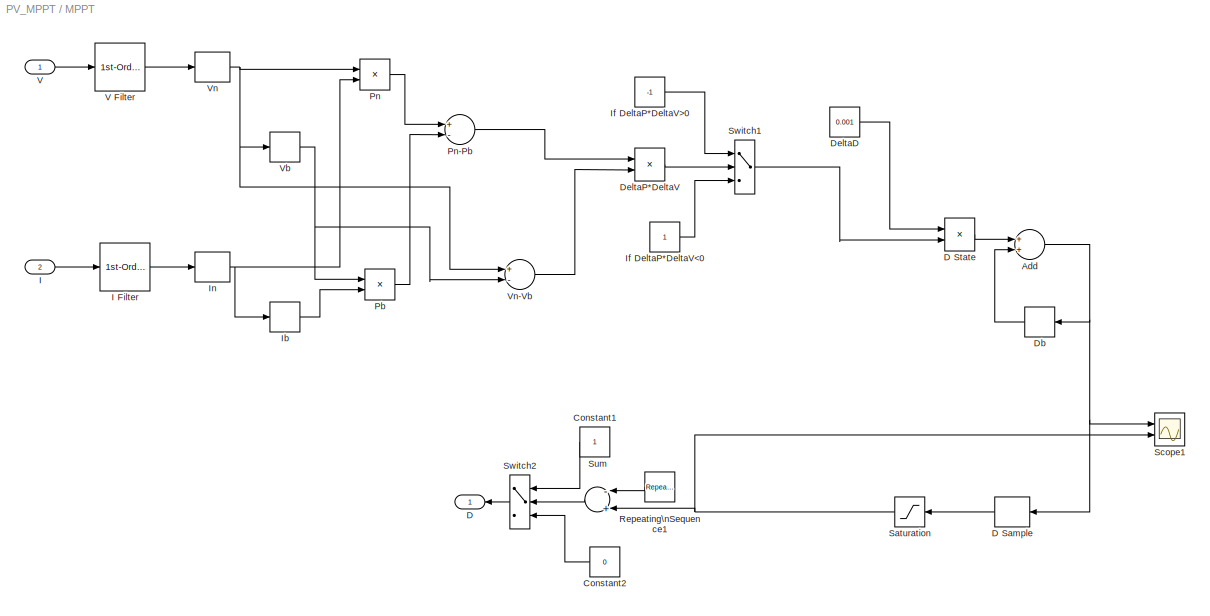
BLOCK [SubSystem] MPPT
  Ports = [2, 1]
  RequestExecContextInheritance = off
  SID = 10
BLOCK [Sum] MPPT/Add
  InputSameDT = off
  OutDataTypeStr = Inherit: Inherit via internal rule
  Ports = [2, 1]
  SID = 13
  SaturateOnIntegerOverflow = off
BLOCK [Constant] MPPT/Constant1
  SID = 14
  SampleTime = -1
BLOCK [Constant] MPPT/Constant2
  SID = 15
  SampleTime = -1
  Value = 0
BLOCK [Outport] MPPT/D
  IconDisplay = Port number
  SID = 39
BLOCK [ZeroOrderHold] MPPT/D Sample
  SID = 16
  SampleTime = 1e-4
BLOCK [Product] MPPT/D State
  InputSameDT = off
  OutDataTypeStr = Inherit: Inherit via internal rule
  Ports = [2, 1]
  SID = 17
  SaturateOnIntegerOverflow = off
BLOCK [Memory] MPPT/Db
  InheritSampleTime = on
  LinearizeAsDelay = on
  SID = 18
BLOCK [Constant] MPPT/DeltaD
  SID = 19
  Value = 0.001
BLOCK [Product] MPPT/DeltaP*DeltaV
  InputSameDT = off
  OutDataTypeStr = Inherit: Inherit via internal rule
  Ports = [2, 1]
  SID = 20
  SaturateOnIntegerOverflow = off
BLOCK [Inport] MPPT/I
  IconDisplay = Port number
  Port = 2
  SID = 12
BLOCK [Reference] MPPT/I Filter  REF=powerlib_extras/Control \nBlocks/1st-Order \nFilter
  FilterType = Lowpass
  FunctionWithSeparateData = off
  Initialize = off
  PlotResponse = off
  Ports = [1, 1]
  RTWMemSecDataConstants = Inherit from model
  RTWMemSecDataInternal = Inherit from model
  RTWMemSecDataParameters = Inherit from model
  RTWMemSecFuncExecute = Inherit from model
  RTWMemSecFuncInitTerm = Inherit from model
  SID = 21
  ShowPortLabels = FromPortIcon
  SourceBlock = powerlib_extras/Control \nBlocks/1st-Order \nFilter
  SourceProductBaseCode = PS
  SourceProductName = Simscape Electrical
  SourceType = First-Order Filter
  SystemSampleTime = -1
  Tc = 1e-3
  Vac_Init = [0.8 -25 60]
  Vdc_Init = -0.4
  param1 = [1 500 1]
BLOCK [Memory] MPPT/Ib
  InheritSampleTime = on
  LinearizeAsDelay = on
  SID = 22
BLOCK [Constant] MPPT/If DeltaP*DeltaV<0
  SID = 23
BLOCK [Constant] MPPT/If DeltaP*DeltaV>0
  SID = 24
  Value = -1
BLOCK [ZeroOrderHold] MPPT/In
  SID = 25
  SampleTime = 1e-4
BLOCK [Product] MPPT/Pb
  InputSameDT = off
  OutDataTypeStr = Inherit: Inherit via internal rule
  Ports = [2, 1]
  SID = 26
  SaturateOnIntegerOverflow = off
BLOCK [Product] MPPT/Pn
  InputSameDT = off
  OutDataTypeStr = Inherit: Inherit via internal rule
  Ports = [2, 1]
  SID = 27
  SaturateOnIntegerOverflow = off
BLOCK [Sum] MPPT/Pn-Pb
  InputSameDT = off
  Inputs = +-
  OutDataTypeStr = Inherit: Inherit via internal rule
  Ports = [2, 1]
  SID = 28
  SaturateOnIntegerOverflow = off
BLOCK [Reference] MPPT/Repeating\nSequence1  REF=simulink/Sources/Repeating\nSequence
  FunctionWithSeparateData = off
  Ports = [0, 1]
  RTWMemSecDataConstants = Inherit from model
  RTWMemSecDataInternal = Inherit from model
  RTWMemSecDataParameters = Inherit from model
  RTWMemSecFuncExecute = Inherit from model
  RTWMemSecFuncInitTerm = Inherit from model
  SID = 29
  ShowPortLabels = FromPortIcon
  SourceBlock = simulink/Sources/Repeating\nSequence
  SourceProductBaseCode = SL
  SourceProductName = Simulink
  SourceType = Repeating table
  SystemSampleTime = -1
  rep_seq_t = [0 4e-3 4e-3]
  rep_seq_y = [0 1 0]
BLOCK [Saturate] MPPT/Saturation
  InputPortMap = u0
  LowerLimit = 0
  Ports = [1, 1]
  SID = 30
  UpperLimit = 0.8
BLOCK [Scope] MPPT/Scope1
  Floating = off
  NumInputPorts = 2
  Ports = [2]
  SID = 31
  ScopeSpecificationString = C++SS(StrPVP('Location','[5, 52, 1285, 993]'),StrPVP('Open','off'),StrPVP('ZoomMode','xonly'),MxPVP('AxesTitles',54,'struct(''axes1'',''%<SignalLabel>'',''axes2'',''%<SignalLabel>'')'),StrPVP('TimeRange','3'),StrPVP('YMin','0.42~-5'),StrPVP('YMax','0.59~5'),StrPVP('SaveName','ScopeData3'),StrPVP('DataFormat','StructureWithTime'),StrPVP('LimitDataPoints','off'),StrPVP('BlockParamSampleInput','on'),...<+25ch>
BLOCK [Sum] MPPT/Sum
  InputSameDT = off
  Inputs = -+
  OutDataTypeStr = Inherit: Inherit via internal rule
  Ports = [2, 1]
  SID = 32
BLOCK [Switch] MPPT/Switch1
  InputSameDT = off
  SID = 33
  SaturateOnIntegerOverflow = off
BLOCK [Switch] MPPT/Switch2
  InputSameDT = off
  SID = 34
  SaturateOnIntegerOverflow = off
BLOCK [Inport] MPPT/V
  IconDisplay = Port number
  SID = 11
BLOCK [Reference] MPPT/V Filter  REF=powerlib_extras/Control \nBlocks/1st-Order \nFilter
  FilterType = Lowpass
  FunctionWithSeparateData = off
  Initialize = off
  PlotResponse = off
  Ports = [1, 1]
  RTWMemSecDataConstants = Inherit from model
  RTWMemSecDataInternal = Inherit from model
  RTWMemSecDataParameters = Inherit from model
  RTWMemSecFuncExecute = Inherit from model
  RTWMemSecFuncInitTerm = Inherit from model
  SID = 35
  ShowPortLabels = FromPortIcon
  SourceBlock = powerlib_extras/Control \nBlocks/1st-Order \nFilter
  SourceProductBaseCode = PS
  SourceProductName = Simscape Electrical
  SourceType = First-Order Filter
  SystemSampleTime = -1
  Tc = 1e-3
  Vac_Init = [0.8 -25 60]
  Vdc_Init = -0.4
  param1 = [1 500 1]
BLOCK [Memory] MPPT/Vb
  InheritSampleTime = on
  LinearizeAsDelay = on
  SID = 36
BLOCK [ZeroOrderHold] MPPT/Vn
  SID = 37
  SampleTime = 1e-4
BLOCK [Sum] MPPT/Vn-Vb
  InputSameDT = off
  Inputs = +-
  OutDataTypeStr = Inherit: Inherit via internal rule
  Ports = [2, 1]
  SID = 38
  SaturateOnIntegerOverflow = off
BLOCK [Product] Product
  InputSameDT = off
  OutDataTypeStr = Inherit: Inherit via internal rule
  Ports = [2, 1]
  SID = 41
  SaturateOnIntegerOverflow = off
BLOCK [Product] Product1
  InputSameDT = off
  OutDataTypeStr = Inherit: Inherit via internal rule
  Ports = [2, 1]
  SID = 42
  SaturateOnIntegerOverflow = off
BLOCK [Reference] R  REF=powerlib/Elements/Series RLC Branch
  BranchType = R
  Capacitance = 1.0
  Inductance = 1.0
  InitialCurrent = 0
  InitialVoltage = 0
  LConnTagsString = __new0
  LeftPortType = p1
  Measurements = None
  PhysicalDomain = powersysdomain
  Ports = [0, 0, 0, 0, 0, 1, 1]
  RConnTagsString = __new0
  Resistance = 500
  RightPortType = p1
  SID = 43
  SetiL0 = off
  Setx0 = off
  SourceBlock = powerlib/Elements/Series RLC Branch
  SourceProductBaseCode = PS
  SourceProductName = Simscape Electrical
  SourceType = Series RLC Branch
  SubClassName = unknown
BLOCK [Reference] R1  REF=powerlib/Elements/Series RLC Branch
  BranchType = R
  Capacitance = 1.0
  Inductance = 1.0
  InitialCurrent = 0
  InitialVoltage = 0
  LConnTagsString = __new0
  LeftPortType = p1
  Measurements = None
  PhysicalDomain = powersysdomain
  Ports = [0, 0, 0, 0, 0, 1, 1]
  RConnTagsString = __new0
  Resistance = 1
  RightPortType = p1
  SID = 44
  SetiL0 = off
  Setx0 = off
  SourceBlock = powerlib/Elements/Series RLC Branch
  SourceProductBaseCode = PS
  SourceProductName = Simscape Electrical
  SourceType = Series RLC Branch
  SubClassName = unknown
BLOCK [Scope] Scope1
  Floating = off
  NumInputPorts = 1
  Ports = [1]
  SID = 45
  ScopeSpecificationString = C++SS(StrPVP('Location','[162, 39, 1186, 714]'),StrPVP('Open','off'),StrPVP('ZoomMode','xonly'),MxPVP('AxesTitles',54,'struct(''axes1'',''%<SignalLabel>'')'),StrPVP('TimeRange','3'),StrPVP('YMin','-50'),StrPVP('YMax','600'),StrPVP('DataFormat','StructureWithTime'),StrPVP('LimitDataPoints','off'),StrPVP('BlockParamSampleInput','on'),StrPVP('Decimation','1'))
BLOCK [Scope] Scope2
  Floating = off
  NumInputPorts = 1
  Ports = [1]
  SID = 46
  ScopeSpecificationString = C++SS(StrPVP('Location','[485, 357, 1513, 775]'),StrPVP('Open','off'),StrPVP('ZoomMode','yonly'),MxPVP('AxesTitles',54,'struct(''axes1'',''%<SignalLabel>'')'),StrPVP('TimeRange','3'),StrPVP('YMin','0'),StrPVP('YMax','10'),StrPVP('SaveName','ScopeData1'),StrPVP('DataFormat','StructureWithTime'),StrPVP('LimitDataPoints','off'),StrPVP('Decimation','1'),StrPVP('BlockParamSampleInput','off'))
BLOCK [Scope] Scope3
  Floating = off
  NumInputPorts = 2
  Ports = [2]
  SID = 47
  ScopeSpecificationString = C++SS(StrPVP('Location','[5, 285, 1285, 714]'),StrPVP('Open','off'),StrPVP('ZoomMode','xonly'),MxPVP('AxesTitles',54,'struct(''axes1'',''%<SignalLabel>'',''axes2'',''%<SignalLabel>'')'),StrPVP('TimeRange','3'),StrPVP('YMin','0~718'),StrPVP('YMax','1~728'),StrPVP('SaveName','ScopeData2'),StrPVP('DataFormat','StructureWithTime'),StrPVP('LimitDataPoints','off'),StrPVP('Decimation','1'),StrPVP('BlockP...<+24ch>
BLOCK [Scope] Scope5
  Floating = off
  NumInputPorts = 2
  Ports = [2]
  SID = 48
  ScopeSpecificationString = C++SS(StrPVP('Location','[5, 285, 1285, 714]'),StrPVP('Open','off'),StrPVP('ZoomMode','xonly'),MxPVP('AxesTitles',54,'struct(''axes1'',''%<SignalLabel>'',''axes2'',''%<SignalLabel>'')'),StrPVP('TimeRange','3'),StrPVP('YMin','75~660'),StrPVP('YMax','325~730'),StrPVP('SaveName','ScopeData5'),StrPVP('DataFormat','StructureWithTime'),StrPVP('LimitDataPoints','off'),StrPVP('Decimation','1'),StrPVP('Blo...<+27ch>
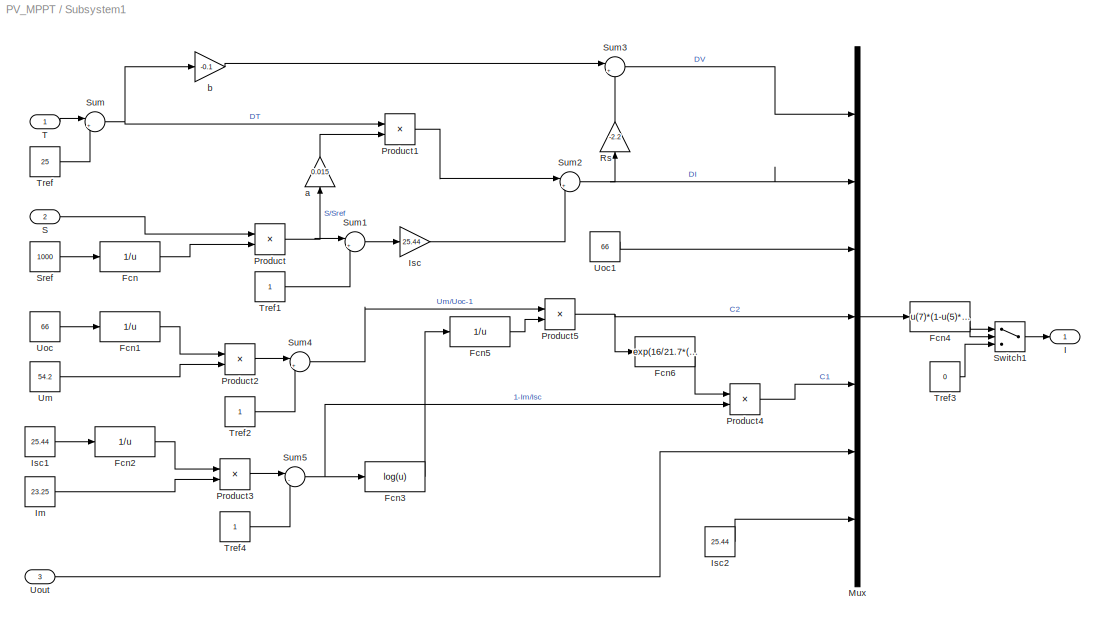
BLOCK [SubSystem] Subsystem1
  Ports = [3, 1]
  RequestExecContextInheritance = off
  SID = 49
BLOCK [Fcn] Subsystem1/Fcn
  Expr = 1/u
  SID = 53
BLOCK [Fcn] Subsystem1/Fcn1
  Expr = 1/u
  SID = 54
BLOCK [Fcn] Subsystem1/Fcn2
  Expr = 1/u
  SID = 55
BLOCK [Fcn] Subsystem1/Fcn3
  Expr = log(u)
  SID = 56
BLOCK [Fcn] Subsystem1/Fcn4
  Expr = u(7)*(1-u(5)*(exp((u(6)-u(1))/(u(4)*u(3)))-1))+u(2)
  SID = 57
BLOCK [Fcn] Subsystem1/Fcn5
  Expr = 1/u
  SID = 58
BLOCK [Fcn] Subsystem1/Fcn6
  Expr = exp(16/21.7*(-1)/u)
  SID = 59
BLOCK [Outport] Subsystem1/I
  IconDisplay = Port number
  SID = 90
BLOCK [Constant] Subsystem1/Im
  SID = 60
  Value = 23.25
BLOCK [Gain] Subsystem1/Isc
  Gain = 25.44
  OutDataTypeStr = Inherit: Inherit via internal rule
  ParamDataTypeStr = Inherit: Inherit via internal rule
  SID = 61
  SaturateOnIntegerOverflow = off
BLOCK [Constant] Subsystem1/Isc1
  SID = 62
  Value = 25.44
BLOCK [Constant] Subsystem1/Isc2
  SID = 63
  Value = 25.44
BLOCK [Mux] Subsystem1/Mux
  DisplayOption = bar
  Inputs = 7
  Ports = [7, 1]
  SID = 64
BLOCK [Product] Subsystem1/Product
  InputSameDT = off
  OutDataTypeStr = Inherit: Inherit via internal rule
  Ports = [2, 1]
  SID = 65
  SaturateOnIntegerOverflow = off
BLOCK [Product] Subsystem1/Product1
  InputSameDT = off
  OutDataTypeStr = Inherit: Inherit via internal rule
  Ports = [2, 1]
  SID = 66
  SaturateOnIntegerOverflow = off
BLOCK [Product] Subsystem1/Product2
  InputSameDT = off
  OutDataTypeStr = Inherit: Inherit via internal rule
  Ports = [2, 1]
  SID = 67
  SaturateOnIntegerOverflow = off
BLOCK [Product] Subsystem1/Product3
  InputSameDT = off
  OutDataTypeStr = Inherit: Inherit via internal rule
  Ports = [2, 1]
  SID = 68
  SaturateOnIntegerOverflow = off
BLOCK [Product] Subsystem1/Product4
  InputSameDT = off
  OutDataTypeStr = Inherit: Inherit via internal rule
  Ports = [2, 1]
  SID = 69
  SaturateOnIntegerOverflow = off
BLOCK [Product] Subsystem1/Product5
  InputSameDT = off
  OutDataTypeStr = Inherit: Inherit via internal rule
  Ports = [2, 1]
  SID = 70
  SaturateOnIntegerOverflow = off
BLOCK [Gain] Subsystem1/Rs
  Gain = -2.2
  OutDataTypeStr = Inherit: Inherit via internal rule
  ParamDataTypeStr = Inherit: Inherit via internal rule
  SID = 71
  SaturateOnIntegerOverflow = off
BLOCK [Inport] Subsystem1/S
  IconDisplay = Port number
  Port = 2
  SID = 51
BLOCK [Constant] Subsystem1/Sref
  SID = 72
  Value = 1000
BLOCK [Sum] Subsystem1/Sum
  IconShape = round
  InputSameDT = off
  Inputs = |+-
  OutDataTypeStr = Inherit: Inherit via internal rule
  Ports = [2, 1]
  SID = 73
  SaturateOnIntegerOverflow = off
BLOCK [Sum] Subsystem1/Sum1
  IconShape = round
  InputSameDT = off
  Inputs = |+-
  OutDataTypeStr = Inherit: Inherit via internal rule
  Ports = [2, 1]
  SID = 74
  SaturateOnIntegerOverflow = off
BLOCK [Sum] Subsystem1/Sum2
  IconShape = round
  InputSameDT = off
  Inputs = |++
  OutDataTypeStr = Inherit: Inherit via internal rule
  Ports = [2, 1]
  SID = 75
  SaturateOnIntegerOverflow = off
BLOCK [Sum] Subsystem1/Sum3
  IconShape = round
  InputSameDT = off
  Inputs = |++
  OutDataTypeStr = Inherit: Inherit via internal rule
  Ports = [2, 1]
  SID = 76
  SaturateOnIntegerOverflow = off
BLOCK [Sum] Subsystem1/Sum4
  IconShape = round
  InputSameDT = off
  Inputs = |+-
  OutDataTypeStr = Inherit: Inherit via internal rule
  Ports = [2, 1]
  SID = 77
  SaturateOnIntegerOverflow = off
BLOCK [Sum] Subsystem1/Sum5
  IconShape = round
  InputSameDT = off
  Inputs = |-+
  OutDataTypeStr = Inherit: Inherit via internal rule
  Ports = [2, 1]
  SID = 78
  SaturateOnIntegerOverflow = off
BLOCK [Switch] Subsystem1/Switch1
  InputSameDT = off
  SID = 79
  SaturateOnIntegerOverflow = off
BLOCK [Inport] Subsystem1/T
  IconDisplay = Port number
  SID = 50
BLOCK [Constant] Subsystem1/Tref
  SID = 80
  Value = 25
BLOCK [Constant] Subsystem1/Tref1
  SID = 81
BLOCK [Constant] Subsystem1/Tref2
  SID = 82
BLOCK [Constant] Subsystem1/Tref3
  SID = 83
  Value = 0
BLOCK [Constant] Subsystem1/Tref4
  SID = 84
BLOCK [Constant] Subsystem1/Um
  SID = 85
  Value = 54.2
BLOCK [Constant] Subsystem1/Uoc
  SID = 86
  Value = 66
BLOCK [Constant] Subsystem1/Uoc1
  SID = 87
  Value = 66
BLOCK [Inport] Subsystem1/Uout
  IconDisplay = Port number
  Port = 3
  SID = 52
BLOCK [Gain] Subsystem1/a
  Gain = 0.015
  OutDataTypeStr = Inherit: Inherit via internal rule
  ParamDataTypeStr = Inherit: Inherit via internal rule
  SID = 88
  SaturateOnIntegerOverflow = off
BLOCK [Gain] Subsystem1/b
  Gain = -0.1
  OutDataTypeStr = Inherit: Inherit via internal rule
  ParamDataTypeStr = Inherit: Inherit via internal rule
  SID = 89
  SaturateOnIntegerOverflow = off
BLOCK [Reference] VM1  REF=powerlib/Measurements/Voltage Measurement
  AttributesFormatString = \\n
  FunctionWithSeparateData = off
  OutputType = Magnitude
  PSBequivalent = 0
  PhasorSimulation = off
  Ports = [0, 1, 0, 0, 0, 2]
  RTWMemSecDataConstants = Inherit from model
  RTWMemSecDataInternal = Inherit from model
  RTWMemSecDataParameters = Inherit from model
  RTWMemSecFuncExecute = Inherit from model
  RTWMemSecFuncInitTerm = Inherit from model
  SID = 91
  ShowPortLabels = FromPortIcon
  SourceBlock = powerlib/Measurements/Voltage Measurement
  SourceProductBaseCode = PS
  SourceProductName = Simscape Electrical
  SourceType = Voltage Measurement
  SystemSampleTime = -1
  Tag = PoWeRsYsTeMmEaSuReMeNt
BLOCK [Reference] VM2  REF=powerlib/Measurements/Voltage Measurement
  AttributesFormatString = \\n
  FunctionWithSeparateData = off
  OutputType = Magnitude
  PSBequivalent = 0
  PhasorSimulation = off
  Ports = [0, 1, 0, 0, 0, 2]
  RTWMemSecDataConstants = Inherit from model
  RTWMemSecDataInternal = Inherit from model
  RTWMemSecDataParameters = Inherit from model
  RTWMemSecFuncExecute = Inherit from model
  RTWMemSecFuncInitTerm = Inherit from model
  SID = 92
  ShowPortLabels = FromPortIcon
  SourceBlock = powerlib/Measurements/Voltage Measurement
  SourceProductBaseCode = PS
  SourceProductName = Simscape Electrical
  SourceType = Voltage Measurement
  SystemSampleTime = -1
  Tag = PoWeRsYsTeMmEaSuReMeNt
BLOCK [Reference] powergui  REF=powerlib/powergui
  DisplayStyle = 1
  EnableUseOfTLC = off
  Frange = [0:2:500]
  FreqAxis = off
  FunctionMessages = off
  FunctionWithSeparateData = off
  HookPort = off
  Interpol = off
  MaxFrequency = 1000
  Ports = []
  RTWMemSecDataConstants = Inherit from model
  RTWMemSecDataInternal = Inherit from model
  RTWMemSecDataParameters = Inherit from model
  RTWMemSecFuncExecute = Inherit from model
  RTWMemSecFuncInitTerm = Inherit from model
  RestoreLinks = warning
  RmsSteady = 1
  SID = 93
  SPID = off
  SampleTime = 50e-6
  ShowGrid = off
  ShowPortLabels = FromPortIcon
  SourceBlock = powerlib/powergui
  SourceProductBaseCode = PS
  SourceProductName = Simscape Electrical
  SourceType = PSB option menu block
  StartTime = 0.0
  SwTol = 0
  SystemSampleTime = -1
  Ts = 0
  UserDataPersistent = on
  Xlog = on
  Ylog = off
  ZoomFFT = on
  cycles = 1
  display = off
  echomessages = off
  frequency = 60
  frequencyindice = 0
  frequencyindicesteady = 1
  fundamental = 60
  methode = off
  save = off
  variable = ZData
  x0status = blocks
ANNOTATION (root): PV System With MPPT\nAuthor: Siva Ganesh Malla, IIT Bhubaneswar, India, Email: <email>
NET CM3:1 -> Product1:1, Scope2:1
LINE Constant1:1 -> Subsystem1:2
LINE Constant:1 -> Subsystem1:1
NET MPPT/Add:1 -> MPPT/D Sample:1, MPPT/Db:1, MPPT/Scope1:1
LINE MPPT/Constant1:1 -> MPPT/Switch2:1
LINE MPPT/Constant2:1 -> MPPT/Switch2:3
LINE MPPT/D Sample:1 -> MPPT/Saturation:1
LINE MPPT/D State:1 -> MPPT/Add:1
LINE MPPT/Db:1 -> MPPT/Add:2
LINE MPPT/DeltaD:1 -> MPPT/D State:1
LINE MPPT/DeltaP*DeltaV:1 -> MPPT/Switch1:2
LINE MPPT/I Filter:1 -> MPPT/In:1
LINE MPPT/I:1 -> MPPT/I Filter:1
LINE MPPT/Ib:1 -> MPPT/Pb:2
LINE MPPT/If DeltaP*DeltaV<0:1 -> MPPT/Switch1:3
LINE MPPT/If DeltaP*DeltaV>0:1 -> MPPT/Switch1:1
NET MPPT/In:1 -> MPPT/Ib:1, MPPT/Pn:2
LINE MPPT/Pb:1 -> MPPT/Pn-Pb:2
LINE MPPT/Pn-Pb:1 -> MPPT/DeltaP*DeltaV:1
LINE MPPT/Pn:1 -> MPPT/Pn-Pb:1
LINE MPPT/Repeating\nSequence1:1 -> MPPT/Sum:1
NET MPPT/Saturation:1 -> MPPT/Scope1:2, MPPT/Sum:2
LINE MPPT/Sum:1 -> MPPT/Switch2:2
LINE MPPT/Switch1:1 -> MPPT/D State:2
LINE MPPT/Switch2:1 -> MPPT/D:1
LINE MPPT/V Filter:1 -> MPPT/Vn:1
LINE MPPT/V:1 -> MPPT/V Filter:1
NET MPPT/Vb:1 -> MPPT/Pb:1, MPPT/Vn-Vb:2
LINE MPPT/Vn-Vb:1 -> MPPT/DeltaP*DeltaV:2
NET MPPT/Vn:1 -> MPPT/Pn:1, MPPT/Vb:1, MPPT/Vn-Vb:1
NET MPPT:1 -> IGBT:1, Scope3:1
LINE Product1:1 -> Scope5:1
NET Product:1 -> Scope3:2, Scope5:2
LINE Subsystem1/Fcn1:1 -> Subsystem1/Product2:1
LINE Subsystem1/Fcn2:1 -> Subsystem1/Product3:1
LINE Subsystem1/Fcn3:1 -> Subsystem1/Fcn5:1
NET Subsystem1/Fcn4:1 -> Subsystem1/Switch1:1, Subsystem1/Switch1:2
LINE Subsystem1/Fcn5:1 -> Subsystem1/Product5:2
LINE Subsystem1/Fcn6:1 -> Subsystem1/Product4:1
LINE Subsystem1/Fcn:1 -> Subsystem1/Product:2
LINE Subsystem1/Im:1 -> Subsystem1/Product3:2
LINE Subsystem1/Isc1:1 -> Subsystem1/Fcn2:1
LINE Subsystem1/Isc2:1 -> Subsystem1/Mux:7
LINE Subsystem1/Isc:1 -> Subsystem1/Sum2:2
LINE Subsystem1/Mux:1 -> Subsystem1/Fcn4:1
LINE Subsystem1/Product1:1 -> Subsystem1/Sum2:1
LINE Subsystem1/Product2:1 -> Subsystem1/Sum4:1
LINE Subsystem1/Product3:1 -> Subsystem1/Sum5:1
LINE Subsystem1/Product4:1 -> Subsystem1/Mux:5
NET Subsystem1/Product5:1 -> Subsystem1/Fcn6:1, Subsystem1/Mux:4
NET Subsystem1/Product:1 -> Subsystem1/Sum1:1, Subsystem1/a:1
LINE Subsystem1/Rs:1 -> Subsystem1/Sum3:2
LINE Subsystem1/S:1 -> Subsystem1/Product:1
LINE Subsystem1/Sref:1 -> Subsystem1/Fcn:1
LINE Subsystem1/Sum1:1 -> Subsystem1/Isc:1
NET Subsystem1/Sum2:1 -> Subsystem1/Mux:2, Subsystem1/Rs:1
LINE Subsystem1/Sum3:1 -> Subsystem1/Mux:1
LINE Subsystem1/Sum4:1 -> Subsystem1/Product5:1
NET Subsystem1/Sum5:1 -> Subsystem1/Fcn3:1, Subsystem1/Product4:2
NET Subsystem1/Sum:1 -> Subsystem1/Product1:1, Subsystem1/b:1
LINE Subsystem1/Switch1:1 -> Subsystem1/I:1
LINE Subsystem1/T:1 -> Subsystem1/Sum:1
LINE Subsystem1/Tref1:1 -> Subsystem1/Sum1:2
LINE Subsystem1/Tref2:1 -> Subsystem1/Sum4:2
LINE Subsystem1/Tref3:1 -> Subsystem1/Switch1:3
LINE Subsystem1/Tref4:1 -> Subsystem1/Sum5:2
LINE Subsystem1/Tref:1 -> Subsystem1/Sum:2
LINE Subsystem1/Um:1 -> Subsystem1/Product2:2
LINE Subsystem1/Uoc1:1 -> Subsystem1/Mux:3
LINE Subsystem1/Uoc:1 -> Subsystem1/Fcn1:1
LINE Subsystem1/Uout:1 -> Subsystem1/Mux:6
LINE Subsystem1/a:1 -> Subsystem1/Product1:2
LINE Subsystem1/b:1 -> Subsystem1/Sum3:1
NET Subsystem1:1 -> Controlled Current Source:1, MPPT:2, Product:2
NET VM1:1 -> MPPT:1, Product:1, Subsystem1:3
NET VM2:1 -> Product1:2, Scope1:1
PNET net1: C1:LConn1 -- L:LConn1 -- R1:LConn1
PNET net2: C1:RConn1 -- C:RConn1 -- Controlled Current Source:LConn1 -- IGBT:RConn1 -- R:RConn1 -- VM1:LConn2 -- VM2:LConn2
PNET net3: C:LConn1 -- CM3:LConn1 -- Diode:RConn1
PNET net4: CM3:RConn1 -- R:LConn1 -- VM2:LConn1
PNET net5: Controlled Current Source:RConn1 -- R1:RConn1 -- VM1:LConn1
PNET net6: Diode:LConn1 -- IGBT:LConn1 -- L:RConn1
note: NET lines group one-source signal fan-out (src -> all destinations, sorted); 1:1 wires keep LINE; PNET lines group multi-terminal physical nets as a canonical sorted terminal list (undirected conserving connections); 2-terminal nets keep the pairwise PLINE form
